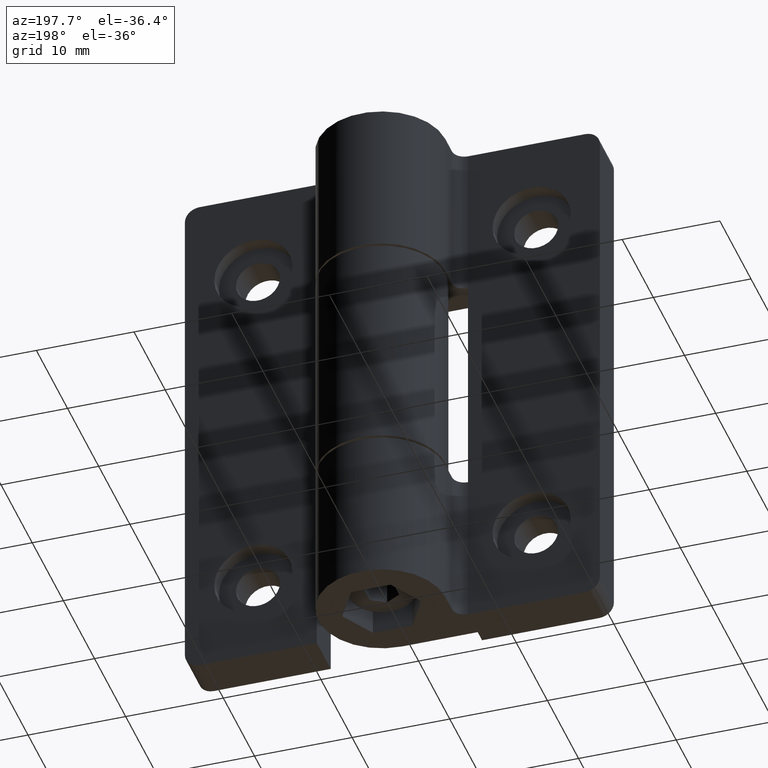
[diagram: clean part render]
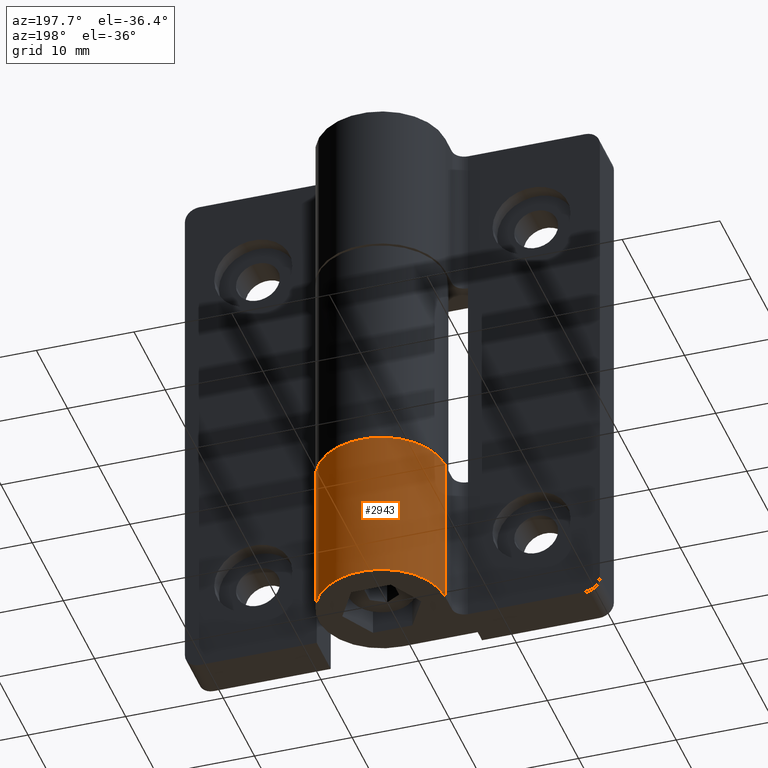
[diagram: same view with one face highlighted and labeled with its STEP entity id]
A machine part, auxiliary view. The second image highlights one B-rep face of the part: STEP entity #2943.
In plain terms, the highlighted cylindrical surface (partial cylindrical patch) has radius 6.5 mm, axis along (0, 0, -1).
Its self-contained STEP definition (entity closure, byte-faithful):
#425=FACE_OUTER_BOUND('',#539,.T.);
#539=EDGE_LOOP('',(#1973,#1974,#1975,#1976));
#687=LINE('',#3796,#839);
#694=LINE('',#3818,#846);
#839=VECTOR('',#3271,16.);
#846=VECTOR('',#3292,16.);
#990=CIRCLE('',#3065,6.5);
#994=CIRCLE('',#3071,6.5);
#1068=VERTEX_POINT('',#3793);
#1069=VERTEX_POINT('',#3795);
#1071=VERTEX_POINT('',#3801);
#1077=VERTEX_POINT('',#3817);
#1474=EDGE_CURVE('',#1069,#1068,#687,.T.);
#1478=EDGE_CURVE('',#1068,#1071,#990,.T.);
#1485=EDGE_CURVE('',#1071,#1077,#694,.T.);
#1486=EDGE_CURVE('',#1069,#1077,#994,.T.);
#1973=ORIENTED_EDGE('',*,*,#1478,.T.);
#1974=ORIENTED_EDGE('',*,*,#1485,.T.);
#1975=ORIENTED_EDGE('',*,*,#1486,.F.);
#1976=ORIENTED_EDGE('',*,*,#1474,.T.);
#2905=CYLINDRICAL_SURFACE('',#3070,6.5);
#2943=ADVANCED_FACE('',(#425),#2905,.T.);
#3065=AXIS2_PLACEMENT_3D('',#3803,#3277,#3278);
#3070=AXIS2_PLACEMENT_3D('',#3816,#3290,#3291);
#3071=AXIS2_PLACEMENT_3D('',#3819,#3293,#3294);
#3271=DIRECTION('',(0.,-1.,0.));
#3277=DIRECTION('center_axis',(0.,1.,0.));
#3278=DIRECTION('ref_axis',(1.,0.,0.));
#3290=DIRECTION('center_axis',(0.,1.,0.));
#3291=DIRECTION('ref_axis',(1.,0.,0.));
#3292=DIRECTION('',(0.,1.,0.));
#3293=DIRECTION('center_axis',(0.,1.,0.));
#3294=DIRECTION('ref_axis',(1.,0.,0.));
#3793=CARTESIAN_POINT('',(14.75,11.75,7.9));
#3795=CARTESIAN_POINT('',(14.75,27.75,7.9));
#3796=CARTESIAN_POINT('',(14.75,0.,7.9));
#3801=CARTESIAN_POINT('',(21.25,11.75,1.39999999999999));
#3803=CARTESIAN_POINT('Origin',(21.25,11.75,7.9));
#3816=CARTESIAN_POINT('Origin',(21.25,0.,7.9));
#3817=CARTESIAN_POINT('',(21.25,27.75,1.39999999999999));
#3818=CARTESIAN_POINT('',(21.25,0.,1.39999999999999));
#3819=CARTESIAN_POINT('Origin',(21.25,27.75,7.9));